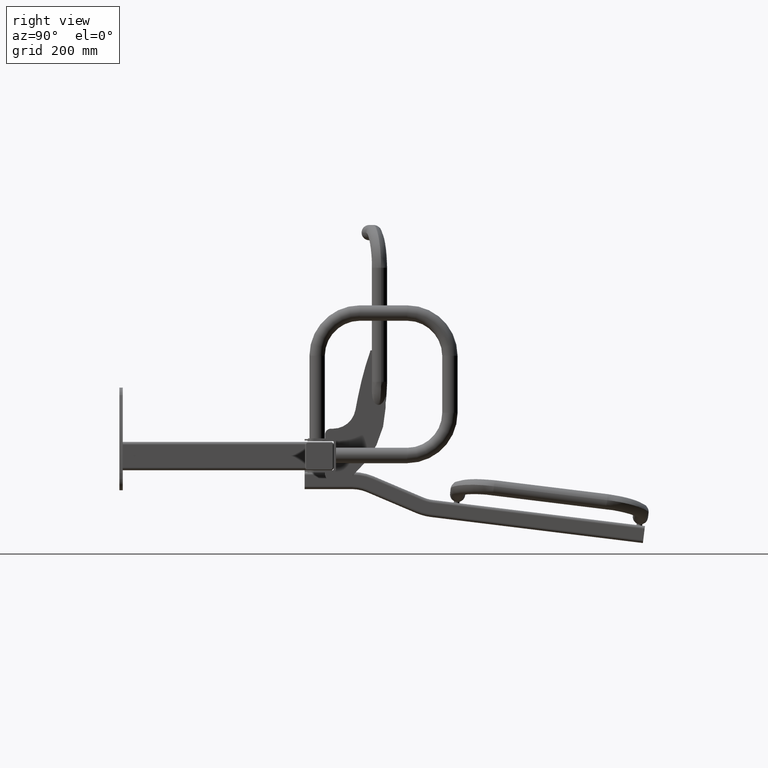
[diagram: clean part render]
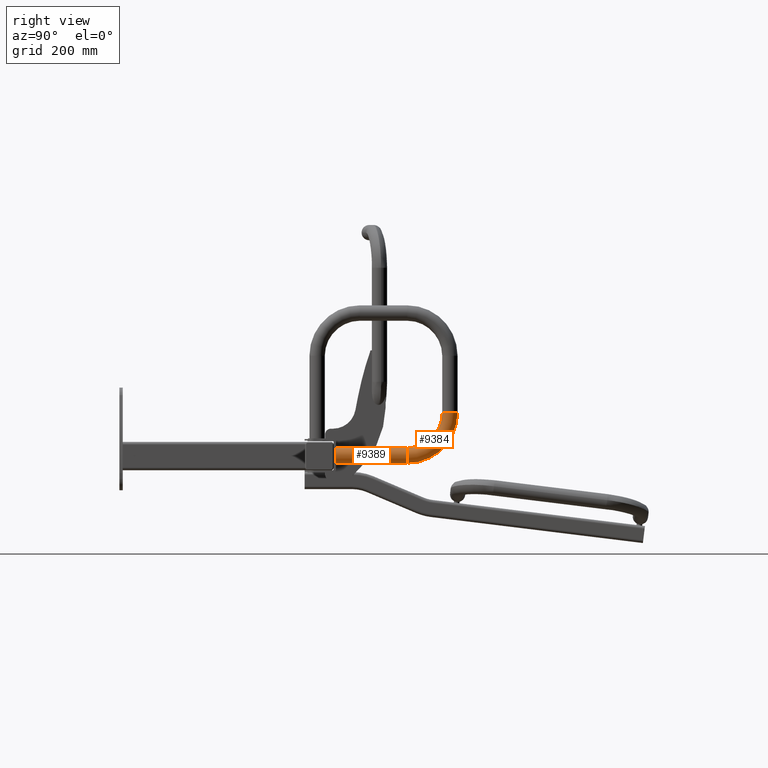
[diagram: same view with one multi-face feature highlighted, each face labeled with its STEP entity id]
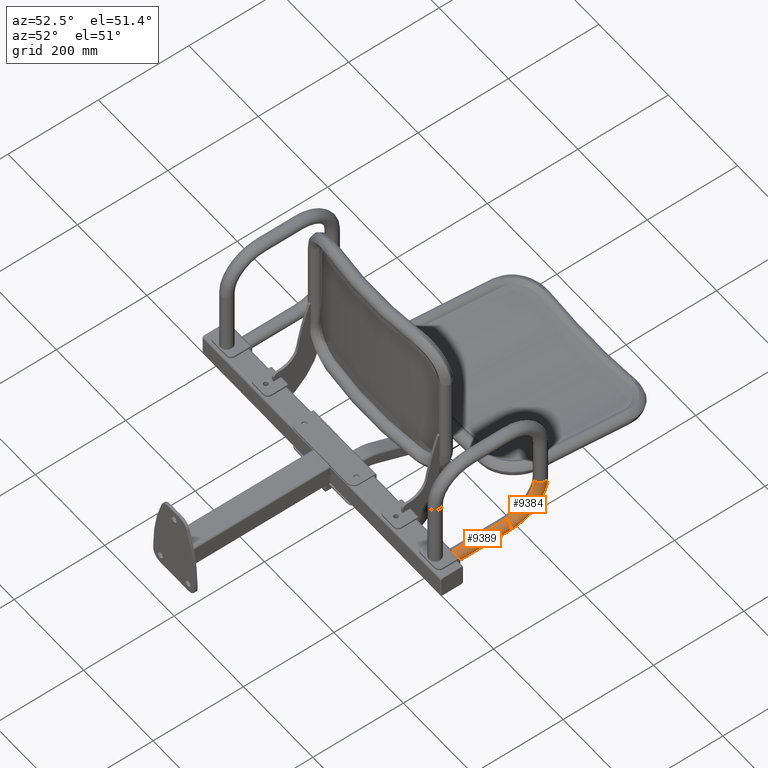
[diagram: same view with one multi-face feature highlighted, each face labeled with its STEP entity id]
A machine part, right view. The highlighted faces form ONE feature: a constant-radius fillet chain: 2 tangent blend faces with common blend radius 13.5 mm. The faces share edges in the B-rep.
A second angle (auxiliary view) of the same feature is appended — it is thin or edge-on in the first view.
Their STEP definitions:
[1] entity #9389 (Cylinder):
#1057 = AXIS2_PLACEMENT_3D ( 'NONE', #1411, #1412, #1410 ) ;
#1217 = CARTESIAN_POINT ( 'NONE',  ( 0.0000000000000000000, 4.000000000000000000, -13.50000000000000500 ) ) ;
#1410 = DIRECTION ( 'NONE',  ( 0.0000000000000000000, 0.0000000000000000000, -1.000000000000000000 ) ) ;
#1411 = CARTESIAN_POINT ( 'NONE',  ( 0.0000000000000000000, 128.9999999999995200, -1.301042606982614600E-015 ) ) ;
#1412 = DIRECTION ( 'NONE',  ( -0.0000000000000000000, -1.000000000000000000, -1.734723475976806500E-017 ) ) ;
#2643 = EDGE_LOOP ( 'NONE', ( #5535, #5536, #5537, #5538 ) ) ;
#2819 = VERTEX_POINT ( 'NONE', #1217 ) ;
#5535 = ORIENTED_EDGE ( 'NONE', *, *, #14746, .F. ) ;
#5536 = ORIENTED_EDGE ( 'NONE', *, *, #14765, .T. ) ;
#5537 = ORIENTED_EDGE ( 'NONE', *, *, #14766, .T. ) ;
#5538 = ORIENTED_EDGE ( 'NONE', *, *, #14767, .F. ) ;
#7279 = CARTESIAN_POINT ( 'NONE',  ( 0.0000000000000000000, 128.9999999999995200, -1.301042606982614600E-015 ) ) ;
#7280 = DIRECTION ( 'NONE',  ( 0.0000000000000000000, 1.000000000000000000, 0.0000000000000000000 ) ) ;
#7281 = DIRECTION ( 'NONE',  ( 0.0000000000000000000, 0.0000000000000000000, 1.000000000000000000 ) ) ;
#7383 = DIRECTION ( 'NONE',  ( -0.0000000000000000000, -1.000000000000000000, -1.734723475976806500E-017 ) ) ;
#7393 = CARTESIAN_POINT ( 'NONE',  ( 1.653273178848926900E-015, 128.9999999999995200, 13.49999999999999800 ) ) ;
#7395 = CARTESIAN_POINT ( 'NONE',  ( 0.0000000000000000000, 128.9999999999995200, -13.50000000000000200 ) ) ;
#7397 = DIRECTION ( 'NONE',  ( -0.0000000000000000000, -1.000000000000000000, -1.734723475976806500E-017 ) ) ;
#7404 = CARTESIAN_POINT ( 'NONE',  ( 0.0000000000000000000, 4.000000000000000000, -3.469446951953614200E-015 ) ) ;
#7406 = DIRECTION ( 'NONE',  ( 0.0000000000000000000, 1.000000000000000000, 0.0000000000000000000 ) ) ;
#7408 = DIRECTION ( 'NONE',  ( 0.0000000000000000000, 0.0000000000000000000, 1.000000000000000000 ) ) ;
#9389 = ADVANCED_FACE ( 'NONE', ( #16037 ), #16042, .T. ) ;
#10163 = VERTEX_POINT ( 'NONE', #13918 ) ;
#10208 = VERTEX_POINT ( 'NONE', #13963 ) ;
#10238 = VERTEX_POINT ( 'NONE', #13993 ) ;
#11418 = CIRCLE ( 'NONE', #16694, 13.50000000000000000 ) ;
#11462 = CIRCLE ( 'NONE', #16709, 13.50000000000000000 ) ;
#11470 = LINE ( 'NONE', #7393, #11476 ) ;
#11476 = VECTOR ( 'NONE', #7397, 1000.000000000000000 ) ;
#11478 = LINE ( 'NONE', #7395, #11482 ) ;
#11482 = VECTOR ( 'NONE', #7383, 1000.000000000000000 ) ;
#13918 = CARTESIAN_POINT ( 'NONE',  ( 1.653273178848926900E-015, 4.000000000000000000, 13.49999999999999600 ) ) ;
#13963 = CARTESIAN_POINT ( 'NONE',  ( 0.0000000000000000000, 128.9999999999995200, -13.50000000000000200 ) ) ;
#13993 = CARTESIAN_POINT ( 'NONE',  ( 1.653273178848926900E-015, 128.9999999999995200, 13.49999999999999800 ) ) ;
#14746 = EDGE_CURVE ( 'NONE', #10238, #10208, #11418, .T. ) ;
#14765 = EDGE_CURVE ( 'NONE', #10238, #10163, #11470, .T. ) ;
#14766 = EDGE_CURVE ( 'NONE', #10163, #2819, #11462, .T. ) ;
#14767 = EDGE_CURVE ( 'NONE', #10208, #2819, #11478, .T. ) ;
#16037 = FACE_OUTER_BOUND ( 'NONE', #2643, .T. ) ;
#16042 = CYLINDRICAL_SURFACE ( 'NONE', #1057, 13.50000000000000000 ) ;
#16694 = AXIS2_PLACEMENT_3D ( 'NONE', #7279, #7280, #7281 ) ;
#16709 = AXIS2_PLACEMENT_3D ( 'NONE', #7404, #7406, #7408 ) ;
[2] entity #9384 (Torus):
#1046 = AXIS2_PLACEMENT_3D ( 'NONE', #1396, #1395, #1398 ) ;
#1395 = DIRECTION ( 'NONE',  ( 1.000000000000000000, 0.0000000000000000000, 0.0000000000000000000 ) ) ;
#1396 = CARTESIAN_POINT ( 'NONE',  ( 0.0000000000000000000, 129.0000000000000000, 75.00000000000000000 ) ) ;
#1398 = DIRECTION ( 'NONE',  ( 0.0000000000000000000, 0.0000000000000000000, -1.000000000000000000 ) ) ;
#2638 = EDGE_LOOP ( 'NONE', ( #5515, #5516, #5517, #5518 ) ) ;
#5515 = ORIENTED_EDGE ( 'NONE', *, *, #14746, .T. ) ;
#5516 = ORIENTED_EDGE ( 'NONE', *, *, #14745, .T. ) ;
#5517 = ORIENTED_EDGE ( 'NONE', *, *, #14747, .F. ) ;
#5518 = ORIENTED_EDGE ( 'NONE', *, *, #14748, .F. ) ;
#7276 = CARTESIAN_POINT ( 'NONE',  ( 0.0000000000000000000, 129.0000000000000000, 75.00000000000000000 ) ) ;
#7277 = DIRECTION ( 'NONE',  ( 1.000000000000000000, 0.0000000000000000000, 0.0000000000000000000 ) ) ;
#7278 = DIRECTION ( 'NONE',  ( 0.0000000000000000000, 0.0000000000000000000, -1.000000000000000000 ) ) ;
#7279 = CARTESIAN_POINT ( 'NONE',  ( 0.0000000000000000000, 128.9999999999995200, -1.301042606982614600E-015 ) ) ;
#7280 = DIRECTION ( 'NONE',  ( 0.0000000000000000000, 1.000000000000000000, 0.0000000000000000000 ) ) ;
#7281 = DIRECTION ( 'NONE',  ( 0.0000000000000000000, 0.0000000000000000000, 1.000000000000000000 ) ) ;
#7282 = CARTESIAN_POINT ( 'NONE',  ( 0.0000000000000000000, 204.0000000000000300, 75.00000000000052600 ) ) ;
#7283 = DIRECTION ( 'NONE',  ( 0.0000000000000000000, -1.370553316539457400E-014, 1.000000000000000000 ) ) ;
#7284 = DIRECTION ( 'NONE',  ( 0.0000000000000000000, -1.000000000000000000, -1.336379566678427900E-014 ) ) ;
#7285 = CARTESIAN_POINT ( 'NONE',  ( -1.653273178848926900E-015, 129.0000000000000000, 75.00000000000000000 ) ) ;
#7286 = DIRECTION ( 'NONE',  ( 1.000000000000000000, 0.0000000000000000000, 0.0000000000000000000 ) ) ;
#7287 = DIRECTION ( 'NONE',  ( 0.0000000000000000000, 0.0000000000000000000, -1.000000000000000000 ) ) ;
#9384 = ADVANCED_FACE ( 'NONE', ( #16015 ), #16028, .T. ) ;
#10179 = VERTEX_POINT ( 'NONE', #13934 ) ;
#10208 = VERTEX_POINT ( 'NONE', #13963 ) ;
#10230 = VERTEX_POINT ( 'NONE', #13985 ) ;
#10238 = VERTEX_POINT ( 'NONE', #13993 ) ;
#11414 = CIRCLE ( 'NONE', #16693, 88.50000000000000000 ) ;
#11418 = CIRCLE ( 'NONE', #16694, 13.50000000000000000 ) ;
#11426 = CIRCLE ( 'NONE', #16696, 61.50000000000000000 ) ;
#11428 = CIRCLE ( 'NONE', #16695, 13.50000000000001200 ) ;
#13934 = CARTESIAN_POINT ( 'NONE',  ( 0.0000000000000000000, 190.5000000000000000, 75.00000000000034100 ) ) ;
#13963 = CARTESIAN_POINT ( 'NONE',  ( 0.0000000000000000000, 128.9999999999995200, -13.50000000000000200 ) ) ;
#13985 = CARTESIAN_POINT ( 'NONE',  ( 1.653273178848925300E-015, 217.5000000000000300, 75.00000000000071100 ) ) ;
#13993 = CARTESIAN_POINT ( 'NONE',  ( 1.653273178848926900E-015, 128.9999999999995200, 13.49999999999999800 ) ) ;
#14745 = EDGE_CURVE ( 'NONE', #10208, #10230, #11414, .T. ) ;
#14746 = EDGE_CURVE ( 'NONE', #10238, #10208, #11418, .T. ) ;
#14747 = EDGE_CURVE ( 'NONE', #10179, #10230, #11428, .T. ) ;
#14748 = EDGE_CURVE ( 'NONE', #10238, #10179, #11426, .T. ) ;
#16015 = FACE_OUTER_BOUND ( 'NONE', #2638, .T. ) ;
#16028 = TOROIDAL_SURFACE ( 'NONE', #1046, 75.00000000000000000, 13.50000000000000000 ) ;
#16693 = AXIS2_PLACEMENT_3D ( 'NONE', #7276, #7277, #7278 ) ;
#16694 = AXIS2_PLACEMENT_3D ( 'NONE', #7279, #7280, #7281 ) ;
#16695 = AXIS2_PLACEMENT_3D ( 'NONE', #7282, #7283, #7284 ) ;
#16696 = AXIS2_PLACEMENT_3D ( 'NONE', #7285, #7286, #7287 ) ;